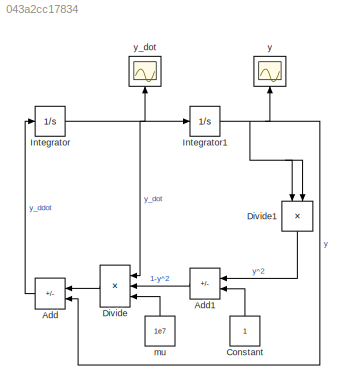
MODEL slx_043a2cc17834
KIND model
CONFIG AbsTol = auto
CONFIG EnableMultiTasking = off
CONFIG FixedStep = 10
CONFIG MaxStep = auto
CONFIG MinStep = auto
CONFIG RelTol = 1e-3
CONFIG SampleTimeConstraint = Unconstrained
CONFIG SolverName = ode4
CONFIG StartTime = 0.0
CONFIG StopTime = 100
BLOCK [Sum] Add
  IconShape = rectangular
  Inputs = +-
  NameLocation = top
BLOCK [Sum] Add1
  IconShape = rectangular
  Inputs = -+
  NameLocation = top
BLOCK [Constant] Constant
  NameLocation = right
BLOCK [Product] Divide
  Inputs = ***
  NameLocation = top
BLOCK [Product] Divide1
  Inputs = **
  NameLocation = left
BLOCK [Integrator] Integrator
BLOCK [Integrator] Integrator1
  InitialCondition = 2
BLOCK [Constant] mu
  Value = 1e7
BLOCK [Scope] y
  Floating = off
  NameLocation = top
  NumInputPorts = 1
  ScopeSpecificationString = Simulink.scopes.TimeScopeBlockCfg('CurrentConfiguration', extmgr.ConfigurationSet(extmgr.Configuration('Core','General UI',true),extmgr.Configuration('Core','Source UI',true),extmgr.Configuration('Sources','WiredSimulink',true,'DataLoggingVariableName','ScopeData1'),extmgr.Configuration('Visuals','Time Domain',true,'SerializedDisplays',{struct('MinYLimReal','1.9999925','MaxYLimReal','2.0000008','Y...<+1467ch>
BLOCK [Scope] y_dot
  Floating = off
  NameLocation = top
  NumInputPorts = 1
  ScopeSpecificationString = Simulink.scopes.TimeScopeBlockCfg('CurrentConfiguration', extmgr.ConfigurationSet(extmgr.Configuration('Core','General UI',true),extmgr.Configuration('Core','Source UI',true),extmgr.Configuration('Sources','WiredSimulink',true),extmgr.Configuration('Visuals','Time Domain',true,'SerializedDisplays',{struct('MinYLimReal','-0.000000076','MaxYLimReal','0.000000008','YLabelReal','','MinYLimMag','0.0000...<+1426ch>
LINE Add1:1 -> Divide:2
LINE Add:1 -> Integrator:1
LINE Constant:1 -> Add1:2
LINE Divide1:1 -> Add1:1
LINE Divide:1 -> Add:1
NET Integrator1:1 -> Add:2, Divide1:1, Divide1:2, y:1
NET Integrator:1 -> Divide:1, Integrator1:1, y_dot:1
LINE mu:1 -> Divide:3
note: NET lines group one-source signal fan-out (src -> all destinations, sorted); 1:1 wires keep LINE
